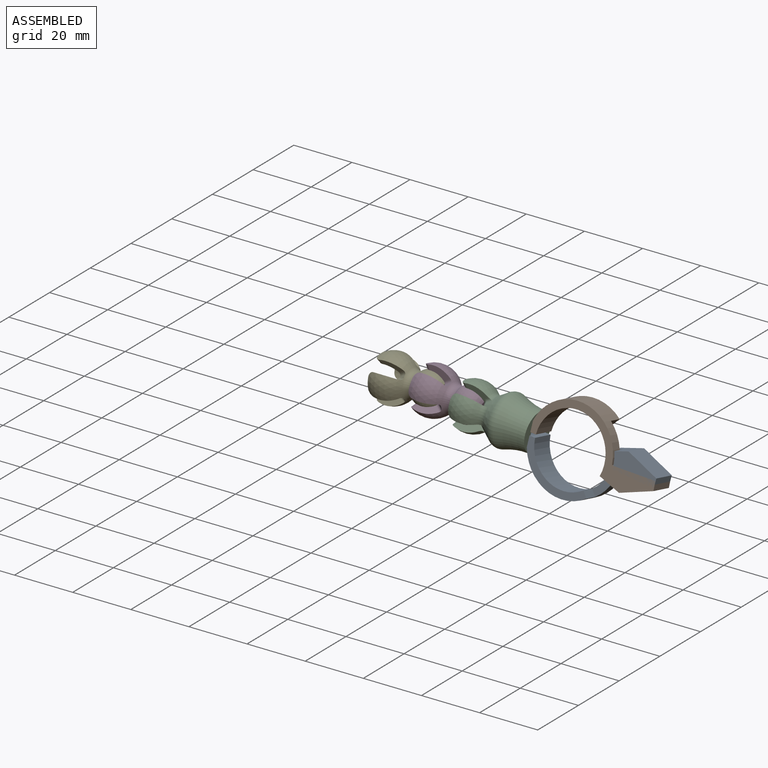
[diagram: assembled view]
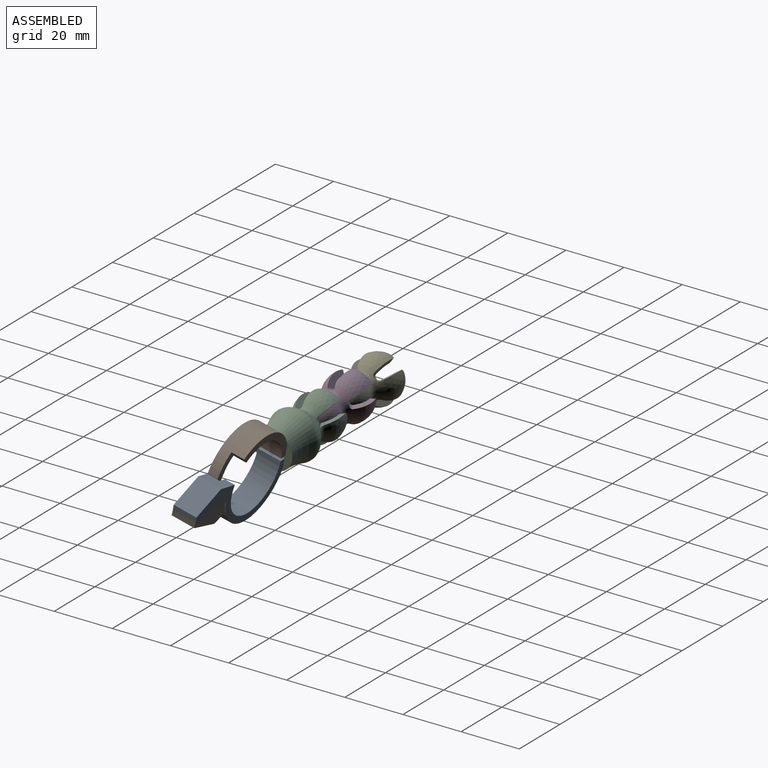
[diagram: assembled view, second angle]
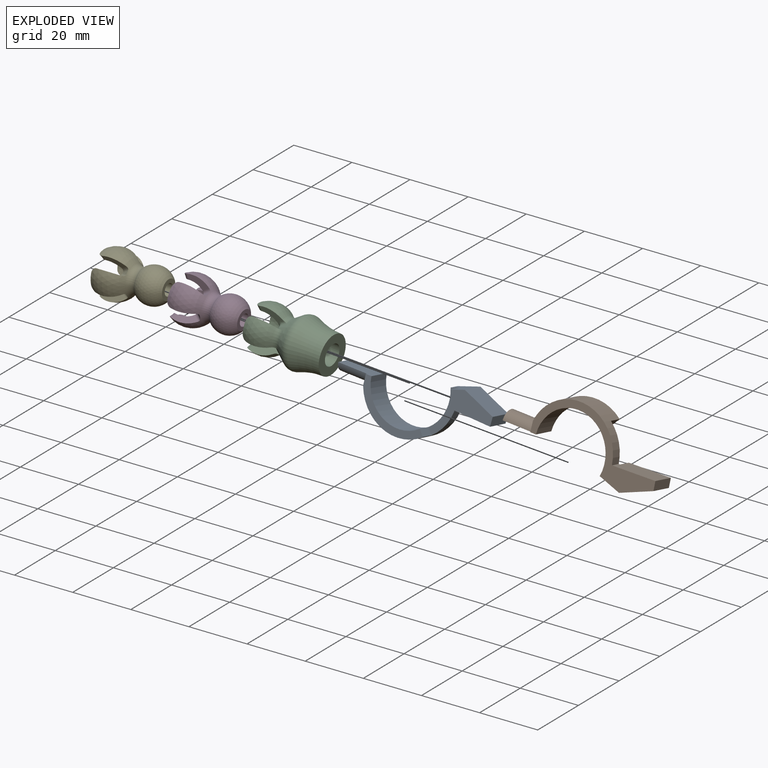
[diagram: exploded view]
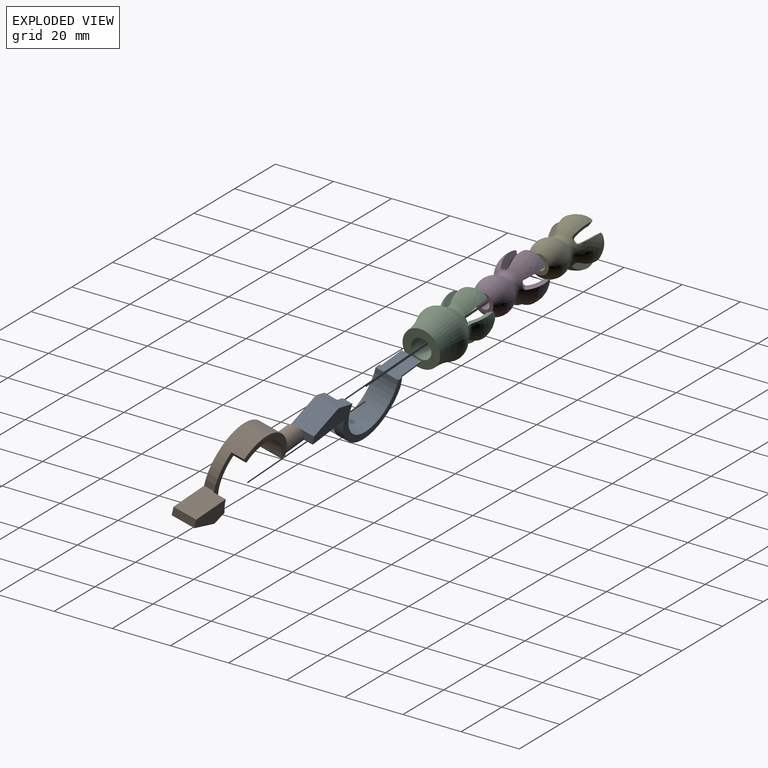
[diagram: exploded view, second angle]
ASSEMBLY  parts=5 mates=4
PART A: 16 faces, bbox 53.5x8x20.7 mm
  f0: plane 8x7.37mm, normal (-0.31,0,-0.95), area 48.6mm2, adj f2,f3,f4,f9,f10,f13
  f1: cylinder r=14.5mm len=28.43mm, axis (0,1,0), area 270.3mm2, adj f3,f4,f5,f6,f8,f12
  f2: cylinder r=12mm len=23.99mm, axis (0,1,0), area 261.6mm2, adj f0,f3,f4,f5,f7,f8
  f3: plane 43.53x20.72mm, normal (0,-1,0), area 193.1mm2, adj f0,f1,f2,f6,f7,f10,f11,f12
  f4: plane 16.22x7.69mm, normal (0,1,0), area 43.6mm2, adj f0,f1,f2,f5,f9,f12
  f5: plane 4.5x1.98mm, normal (0.79,0,-0.61), area 11.3mm2, adj f1,f2,f4,f8
  f6: plane 8x3.5mm, normal (-1,0,0), area 12.2mm2, adj f1,f3,f7,f8,f14
  f7: plane 11.95x8mm, normal (0,0,-1), area 84.9mm2, adj f2,f3,f6,f8,f14,f15
  f8: plane 22.77x14mm, normal (0,1,0), area 71.2mm2, adj f1,f2,f5,f6,f7
  f9: cylinder r=15mm len=5.28mm, axis (0,1,0), area 24.1mm2, adj f0,f4,f12,f13
  f10: plane 10.84x8mm, normal (0.37,0,-0.93), area 93.3mm2, adj f0,f3,f11,f13
  f11: plane 8x3mm, normal (1,0,0.04), area 24mm2, adj f3,f10,f12,f13
  f12: plane 14.99x8mm, normal (-0.04,0,1), area 117.7mm2, adj f1,f3,f4,f9,f11,f13
  f13: plane 15.35x7.32mm, normal (0,1,0), area 78.3mm2, adj f0,f9,f10,f11,f12
  f14: cylinder r=3.5mm len=10mm, axis (1,0,0), area 99.9mm2, adj f6,f7,f15
  f15: plane 6.93x3mm, normal (-1,0,0), area 15.8mm2, adj f7,f14
PART B: same geometry as A
PART C: 48 faces, bbox 28.8x28.8x43.6 mm
  f0: cone r=3.44mm half-angle=35deg, axis (0,0,1), area 173.8mm2, adj f10,f11,f12,f14,f22,f23,f24,f31
  f1: sphere r=6mm, area 45.3mm2, adj f6,f8,f9,f13,f15,f16,f17,f46
  f2: torus R=29.9mm, axis (0,0,-1), area 408.4mm2, adj f3,f45
  f3: plane 13x13mm, normal (0,0,1), area 94.2mm2, adj f2,f4
  f4: cylinder r=3.5mm len=10mm, axis (0,0,-1), area 219.9mm2, adj f3,f47
  f5: cylinder r=2mm len=4.17mm, axis (0,0,-1), area 52.4mm2, adj f46,f47
  f6: cone r=5.48mm half-angle=66deg, axis (0,0,-1), area 4.4mm2, adj f1,f7,f16,f17
  f7: sphere r=8mm, area 74.7mm2, adj f6,f8,f9,f10,f16,f17
  f8: plane 8x3.69mm, normal (-0.5,0.87,0), area 16.2mm2, adj f1,f7,f10,f12,f13,f17
  f9: plane 8x3.69mm, normal (-0.5,-0.87,0), area 16.2mm2, adj f1,f7,f10,f14,f15,f16
  f10: torus R=7.65mm, axis (0,0,-1), area 17.6mm2, adj f0,f7,f8,f9,f12,f14
  f11: torus R=2.8mm, axis (0,0,-1), area 33.9mm2, adj f0,f13,f15,f18,f27,f36,f46
  f12: bspline ~4.53x3.55mm, area 2.7mm2, adj f0,f8,f10,f13
  f13: bspline ~3.03x2.06mm, area 2.8mm2, adj f1,f8,f11,f12,f46
  f14: bspline ~4.53x3.55mm, area 2.7mm2, adj f0,f9,f10,f15
  f15: bspline ~3.03x2.06mm, area 2.8mm2, adj f1,f9,f11,f14,f46
  f16: bspline ~4.24x3.85mm, area 5mm2, adj f1,f6,f7,f9
  f17: bspline ~4.24x3.85mm, area 5mm2, adj f1,f6,f7,f8
  f18: cone r=3.44mm half-angle=35deg, axis (0,0,1), area 7.2mm2, adj f11,f19,f22,f23
  f19: sphere r=6mm, area 43.8mm2, adj f18,f20,f22,f23,f25,f26
  f20: cone r=5.48mm half-angle=66deg, axis (0,0,-1), area 4.4mm2, adj f19,f21,f25,f26
  f21: sphere r=8mm, area 74.7mm2, adj f20,f22,f23,f24,f25,f26
  f22: plane 9.92x3.95mm, normal (-0.87,-0.5,0), area 19mm2, adj f0,f18,f19,f21,f24,f26
  f23: plane 9.92x3.95mm, normal (0.87,-0.5,0), area 19mm2, adj f0,f18,f19,f21,f24,f25
  f24: torus R=7.65mm, axis (0,0,-1), area 15.9mm2, adj f0,f21,f22,f23
  f25: bspline ~4.24x3.85mm, area 5mm2, adj f19,f20,f21,f23
  f26: bspline ~4.24x3.85mm, area 5mm2, adj f19,f20,f21,f22
  f27: cone r=3.44mm half-angle=35deg, axis (0,0,1), area 7.2mm2, adj f11,f28,f31,f32
  f28: sphere r=6mm, area 43.8mm2, adj f27,f29,f31,f32,f34,f35
  f29: cone r=5.48mm half-angle=66deg, axis (0,0,-1), area 4.4mm2, adj f28,f30,f34,f35
  f30: sphere r=8mm, area 74.7mm2, adj f29,f31,f32,f33,f34,f35
  f31: plane 9.92x3.95mm, normal (0.5,-0.87,0), area 19mm2, adj f0,f27,f28,f30,f33,f35
  f32: plane 9.92x3.95mm, normal (0.5,0.87,0), area 19mm2, adj f0,f27,f28,f30,f33,f34
  f33: torus R=7.65mm, axis (0,0,-1), area 15.9mm2, adj f0,f30,f31,f32
  f34: bspline ~4.24x3.85mm, area 5mm2, adj f28,f29,f30,f32
  f35: bspline ~4.24x3.85mm, area 5mm2, adj f28,f29,f30,f31
  f36: cone r=3.44mm half-angle=35deg, axis (0,0,1), area 7.2mm2, adj f11,f37,f40,f41
  f37: sphere r=6mm, area 43.8mm2, adj f36,f38,f40,f41,f43,f44
  f38: cone r=5.48mm half-angle=66deg, axis (0,0,-1), area 4.4mm2, adj f37,f39,f43,f44
  f39: sphere r=8mm, area 74.7mm2, adj f38,f40,f41,f42,f43,f44
  f40: plane 9.92x3.95mm, normal (0.87,0.5,0), area 19mm2, adj f0,f36,f37,f39,f42,f44
  f41: plane 9.92x3.95mm, normal (-0.87,0.5,0), area 19mm2, adj f0,f36,f37,f39,f42,f43
  f42: torus R=7.65mm, axis (0,0,-1), area 15.9mm2, adj f0,f39,f40,f41
  f43: bspline ~4.24x3.85mm, area 5mm2, adj f37,f38,f39,f41
  f44: bspline ~4.24x3.85mm, area 5mm2, adj f37,f38,f39,f40
  f45: torus R=5.5mm, axis (0,0,1), area 157.9mm2, adj f0,f2
  f46: torus R=5mm, axis (0,0,-1), area 34.2mm2, adj f1,f5,f11,f13,f15
  f47: cone r=3.5mm half-angle=45deg, axis (0,0,1), area 36.7mm2, adj f4,f5
PART D: 42 faces, bbox 16.5x16.5x22.9 mm
  f0: cone r=3.44mm half-angle=35deg, axis (0,0,1), area 1.4mm2, adj f4,f5,f30,f37
  f1: cone r=3.44mm half-angle=35deg, axis (0,0,1), area 1.4mm2, adj f4,f5,f22,f29
  f2: cone r=3.44mm half-angle=35deg, axis (0,0,1), area 1.4mm2, adj f4,f5,f14,f21
  f3: cone r=3.44mm half-angle=35deg, axis (0,0,1), area 1.4mm2, adj f4,f5,f13,f38
  f4: sphere r=6mm, area 183.3mm2, adj f0,f1,f2,f3,f9,f11,f12,f13
  f5: torus R=6.49mm, axis (0,0,-1), area 114.6mm2, adj f0,f1,f2,f3,f6,f10,f18,f26
  f6: sphere r=6mm, area 310.8mm2, adj f5,f7
  f7: plane 6.63x6.63mm, normal (0,0,1), area 22mm2, adj f6,f8
  f8: cylinder r=2mm len=11.52mm, axis (0,0,-1), area 144.7mm2, adj f7,f41
  f9: cone r=5.48mm half-angle=66deg, axis (0,0,-1), area 4.4mm2, adj f4,f10,f15,f16
  f10: sphere r=8mm, area 84.4mm2, adj f5,f9,f11,f12,f13,f14,f15,f16
  f11: plane 7.91x3.34mm, normal (-0.5,0.87,0), area 15.9mm2, adj f4,f10,f14,f16
  f12: plane 7.91x3.34mm, normal (-0.5,-0.87,0), area 15.9mm2, adj f4,f10,f13,f15
  f13: bspline ~5.85x4.34mm, area 3.9mm2, adj f3,f4,f10,f12
  f14: bspline ~5.85x4.34mm, area 3.9mm2, adj f2,f4,f10,f11
  f15: bspline ~4.24x3.85mm, area 5mm2, adj f4,f9,f10,f12
  f16: bspline ~4.24x3.85mm, area 5mm2, adj f4,f9,f10,f11
  f17: cone r=5.48mm half-angle=66deg, axis (0,0,-1), area 4.4mm2, adj f4,f18,f23,f24
  f18: sphere r=8mm, area 84.4mm2, adj f5,f17,f19,f20,f21,f22,f23,f24
  f19: plane 7.91x3.34mm, normal (-0.87,-0.5,0), area 15.9mm2, adj f4,f18,f22,f24
  f20: plane 7.91x3.34mm, normal (0.87,-0.5,0), area 15.9mm2, adj f4,f18,f21,f23
  f21: bspline ~4.53x3.53mm, area 3.9mm2, adj f2,f4,f18,f20
  f22: bspline ~5.85x4.34mm, area 3.9mm2, adj f1,f4,f18,f19
  f23: bspline ~4.24x3.85mm, area 5mm2, adj f4,f17,f18,f20
  f24: bspline ~4.24x3.85mm, area 5mm2, adj f4,f17,f18,f19
  f25: cone r=5.48mm half-angle=66deg, axis (0,0,-1), area 4.4mm2, adj f4,f26,f31,f32
  f26: sphere r=8mm, area 84.4mm2, adj f5,f25,f27,f28,f29,f30,f31,f32
  f27: plane 7.91x3.34mm, normal (0.5,-0.87,0), area 15.9mm2, adj f4,f26,f30,f32
  f28: plane 7.91x3.34mm, normal (0.5,0.87,0), area 15.9mm2, adj f4,f26,f29,f31
  f29: bspline ~4.53x3.53mm, area 3.9mm2, adj f1,f4,f26,f28
  f30: bspline ~5.85x4.34mm, area 3.9mm2, adj f0,f4,f26,f27
  f31: bspline ~4.24x3.85mm, area 5mm2, adj f4,f25,f26,f28
  f32: bspline ~4.24x3.85mm, area 5mm2, adj f4,f25,f26,f27
  f33: cone r=5.48mm half-angle=66deg, axis (0,0,-1), area 4.4mm2, adj f4,f34,f39,f40
  f34: sphere r=8mm, area 84.4mm2, adj f5,f33,f35,f36,f37,f38,f39,f40
  f35: plane 7.91x3.34mm, normal (0.87,0.5,0), area 15.9mm2, adj f4,f34,f38,f40
  f36: plane 7.91x3.34mm, normal (-0.87,0.5,0), area 15.9mm2, adj f4,f34,f37,f39
  f37: bspline ~4.53x3.53mm, area 3.9mm2, adj f0,f4,f34,f36
  f38: bspline ~6.73x4.88mm, area 3.9mm2, adj f3,f4,f34,f35
  f39: bspline ~4.24x3.85mm, area 5mm2, adj f4,f33,f34,f36
  f40: bspline ~4.24x3.85mm, area 5mm2, adj f4,f33,f34,f35
  f41: torus R=5mm, axis (0,0,-1), area 45.5mm2, adj f4,f8
PART E: same geometry as D
PLACE A rot(axis=(1,0,-0.05),165.6deg) t=(62,-8.98,-2.64)mm
PLACE B rot(axis=(-0.94,0.35,0),15.4deg) t=(62,-8.98,-2.64)mm
PLACE C rot(axis=(0.74,0.09,0.67),169.9deg) t=(25.07,-8.58,0.84)mm
PLACE D rot(axis=(0.48,0.77,0.43),108deg) t=(11.11,-8.22,1.83)mm
PLACE E rot(axis=(0,1,0),90deg) t=(-2.89,-8.22,1.83)mm fixed
MATE ball D.f0 <-> C.f0  axis (1,-0.03,-0.07) through (25.07,-8.58,0.84)mm
MATE fastened B.f14 <-> A.f14  axis (-1,0.01,0.09) through (38.17,-8.72,-0.39)mm
MATE ball E.f0 <-> D.f0  axis (1,0,0) through (11.11,-8.22,1.83)mm
MATE fastened C.f0 <-> B.f14  axis (-1,0.01,0.09) through (38.17,-8.72,-0.39)mm
